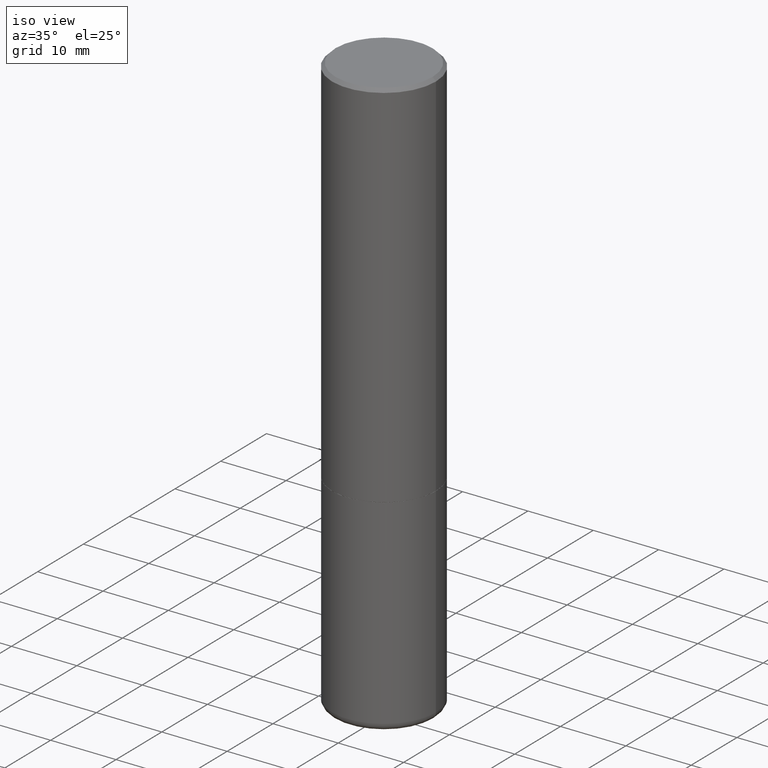
[diagram: clean part render]
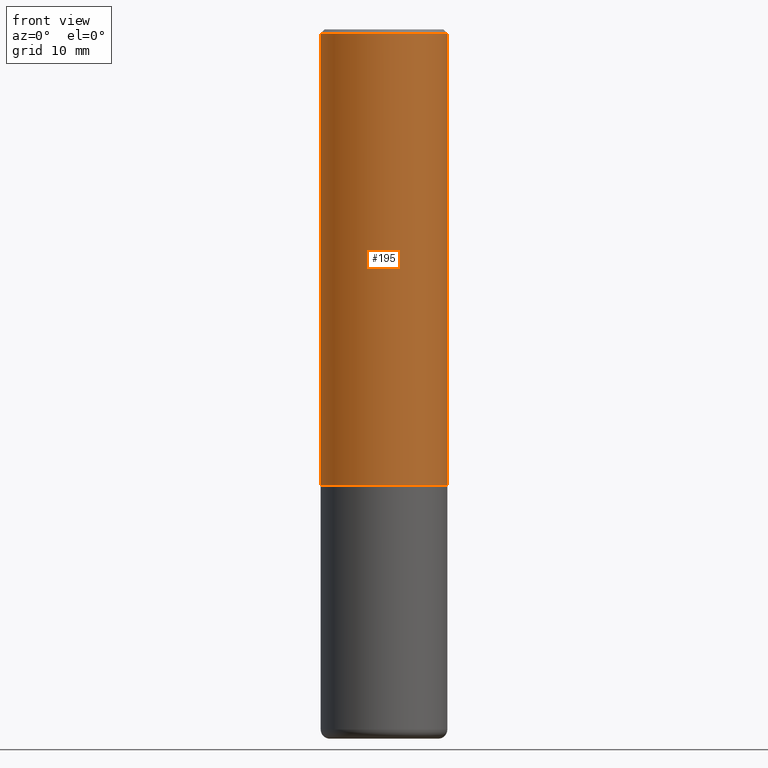
[diagram: tour spotlight — one face highlighted and labeled with its STEP entity id]
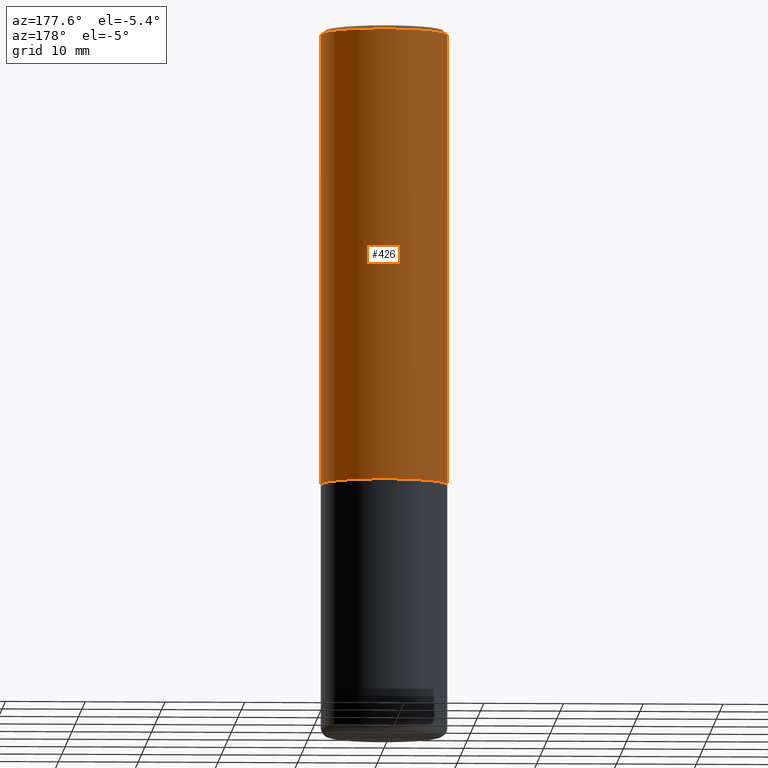
[diagram: tour spotlight — one face highlighted and labeled with its STEP entity id]
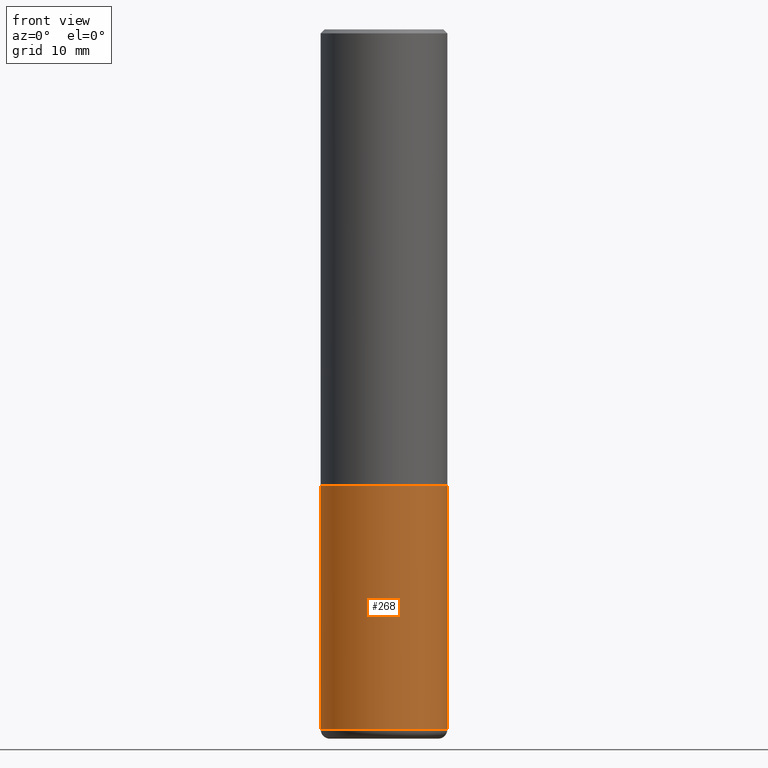
[diagram: tour spotlight — one face highlighted and labeled with its STEP entity id]
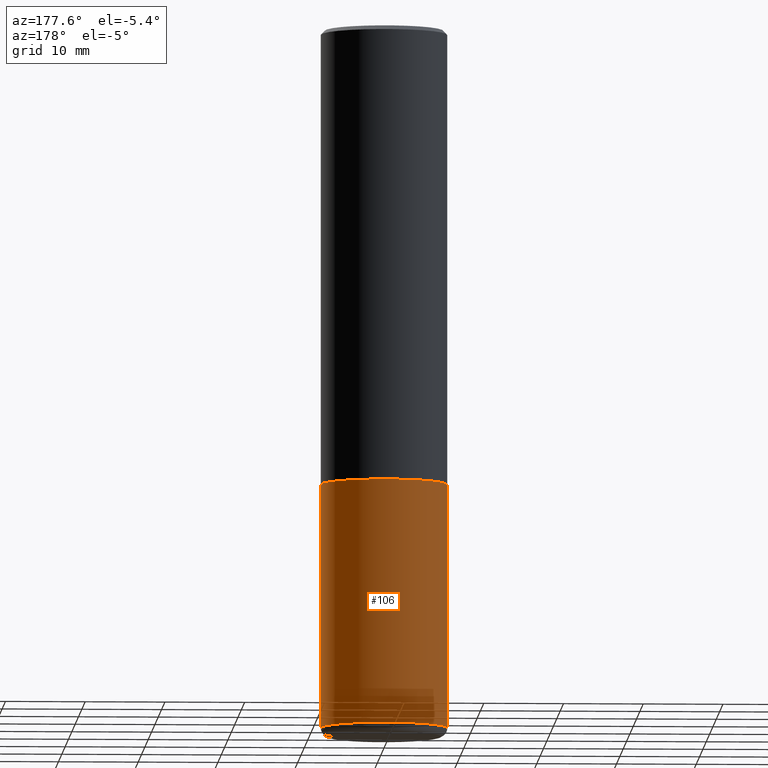
[diagram: tour spotlight — one face highlighted and labeled with its STEP entity id]
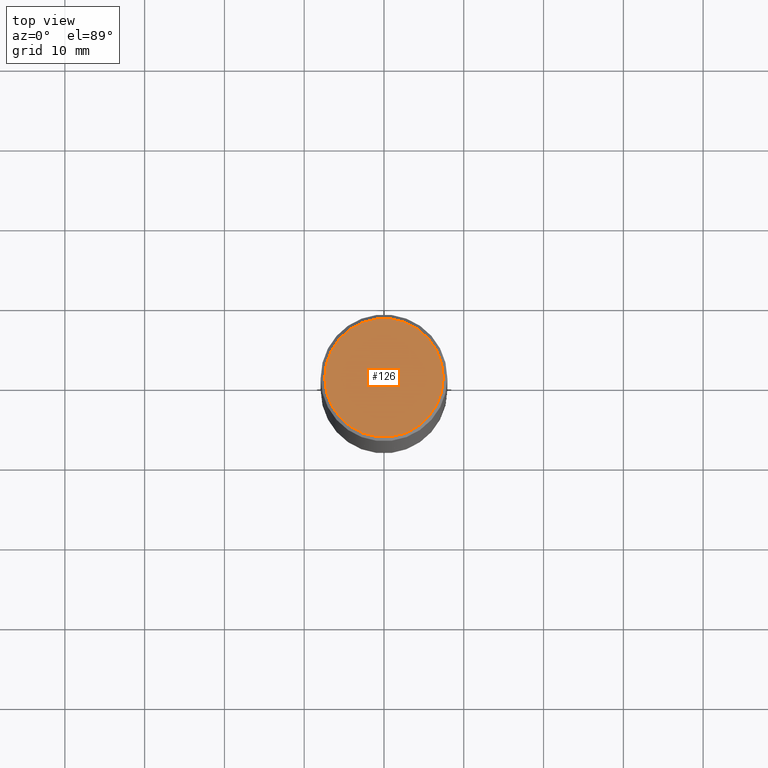
[diagram: tour spotlight — one face highlighted and labeled with its STEP entity id]
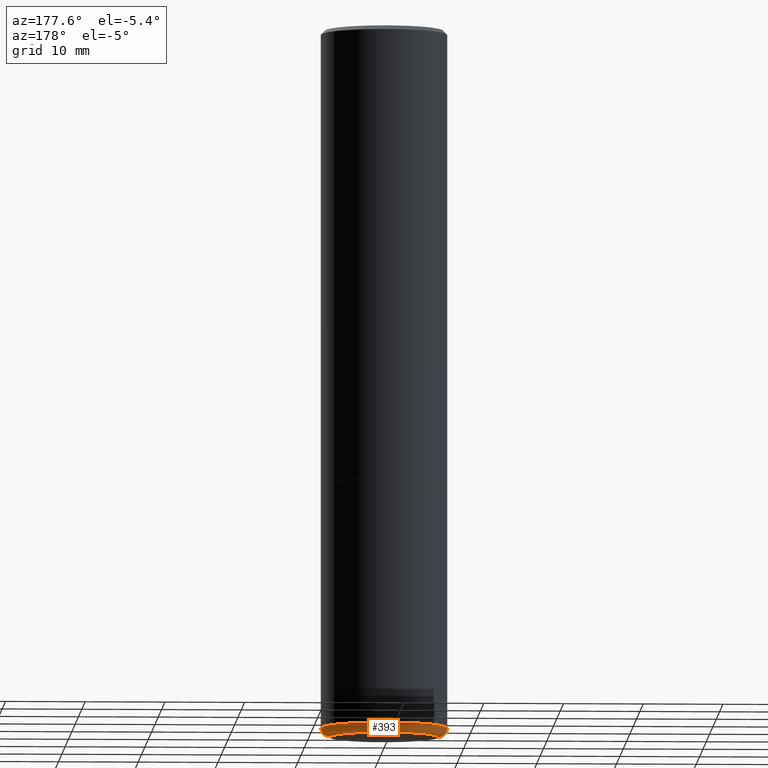
[diagram: tour spotlight — one face highlighted and labeled with its STEP entity id]
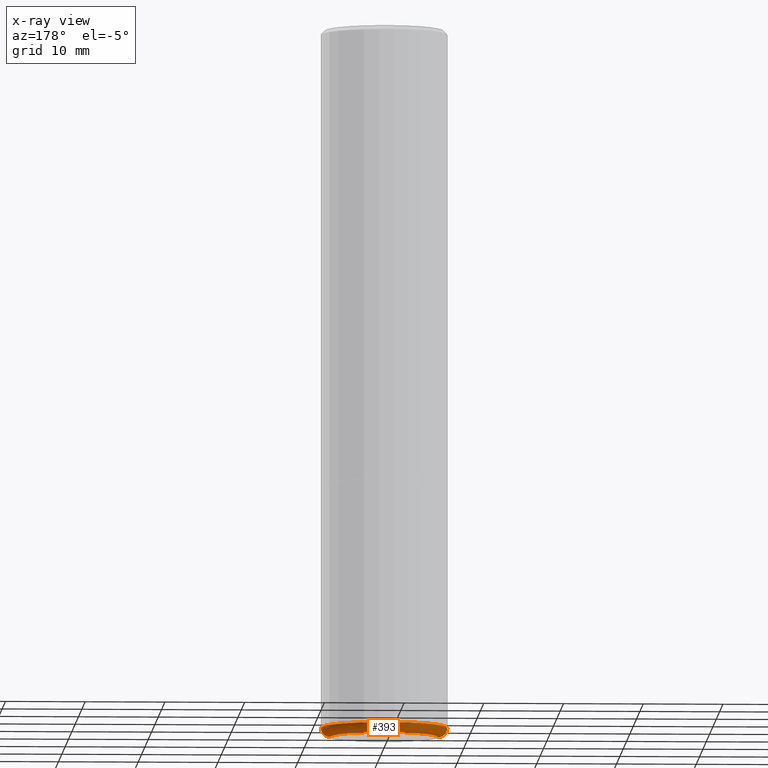
[diagram: x-ray of the same camera — body ghosted, this tour face saturated]
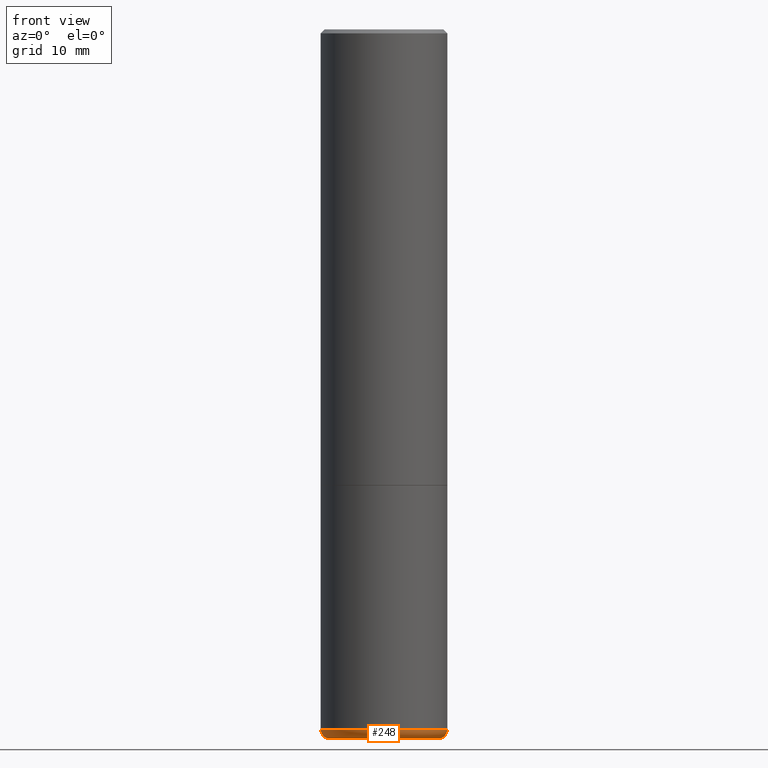
[diagram: tour spotlight — one face highlighted and labeled with its STEP entity id]
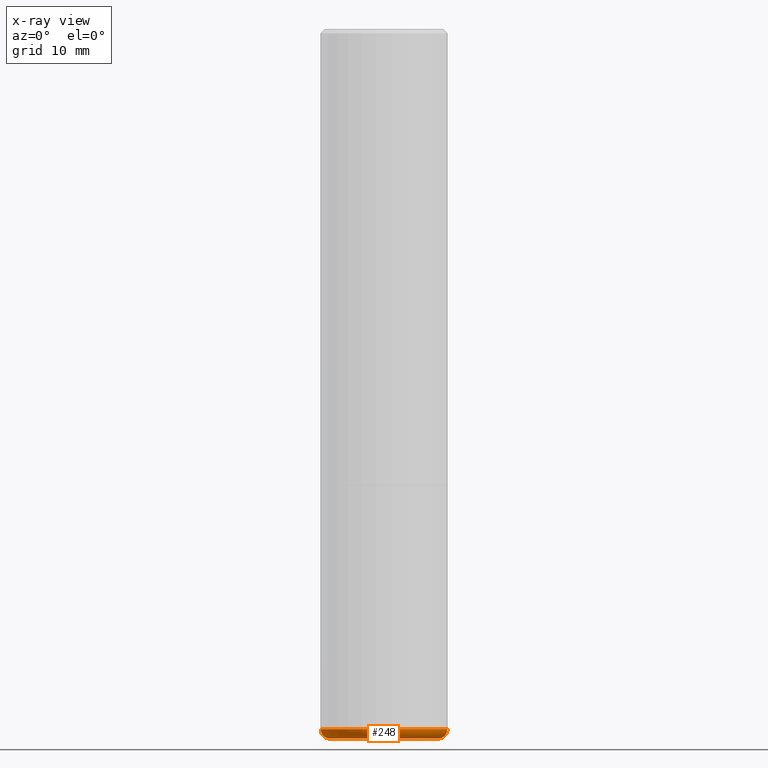
[diagram: x-ray of the same camera — body ghosted, this tour face saturated]
A machine part: a face-by-face anatomy tour. The part has 15 B-rep faces; the first image is the clean iso view, then the 7 largest visible faces are spotlighted one at a time (largest first), each with its STEP entity span.

Face 1 — front view, entity #195. In plain terms, the highlighted cylindrical surface (partial cylindrical patch) has radius 7.9375 mm, axis along (-0, 0, 1).
Definition (entity closure, byte-faithful):
#5 = DIRECTION ( 'NONE',  ( -2.445468806185136877E-29, 3.491481338843145188E-15, 1.000000000000000000 ) ) ;
#11 = DIRECTION ( 'NONE',  ( -2.445468806185136597E-29, 3.491481338843145583E-15, 1.000000000000000000 ) ) ;
#27 = CYLINDRICAL_SURFACE ( 'NONE', #352, 0.3124999999999998890 ) ;
#31 = FACE_OUTER_BOUND ( 'NONE', #413, .T. ) ;
#34 = DIRECTION ( 'NONE',  ( -2.445468806185136597E-29, 3.491481338843145583E-15, 1.000000000000000000 ) ) ;
#38 = CARTESIAN_POINT ( 'NONE',  ( 5.499859345110370619E-29, -7.852341531058232286E-15, -2.248999999999999222 ) ) ;
#43 = ORIENTED_EDGE ( 'NONE', *, *, #240, .T. ) ;
#57 = CARTESIAN_POINT ( 'NONE',  ( -0.3125000000000000000, -1.740639529667232739E-15, -2.248999999999999222 ) ) ;
#60 = VECTOR ( 'NONE', #5, 39.37007874015748143 ) ;
#75 = VERTEX_POINT ( 'NONE', #206 ) ;
#92 = VECTOR ( 'NONE', #172, 39.37007874015748143 ) ;
#129 = AXIS2_PLACEMENT_3D ( 'NONE', #341, #272, #377 ) ;
#148 = VERTEX_POINT ( 'NONE', #171 ) ;
#149 = EDGE_CURVE ( 'NONE', #419, #148, #209, .T. ) ;
#152 = DIRECTION ( 'NONE',  ( 1.000000000000000000, -6.982962677686269077E-15, 0.000000000000000000 ) ) ;
#170 = CARTESIAN_POINT ( 'NONE',  ( -0.3124999999999998890, 2.220446049250312292E-15, -1.537167215704657391E-29 ) ) ;
#171 = CARTESIAN_POINT ( 'NONE',  ( -0.3124999999999998335, 2.112346210000093866E-15, -0.02000000000000002123 ) ) ;
#172 = DIRECTION ( 'NONE',  ( -2.445468806185136877E-29, 3.491481338843145188E-15, 1.000000000000000000 ) ) ;
#177 = EDGE_CURVE ( 'NONE', #148, #75, #342, .T. ) ;
#195 = ADVANCED_FACE ( 'NONE', ( #31 ), #27, .T. ) ;
#201 = ORIENTED_EDGE ( 'NONE', *, *, #177, .F. ) ;
#206 = CARTESIAN_POINT ( 'NONE',  ( 0.3124999999999998335, -2.213735251080465334E-15, -0.02000000000000002123 ) ) ;
#207 = LINE ( 'NONE', #373, #60 ) ;
#209 = LINE ( 'NONE', #170, #92 ) ;
#239 = DIRECTION ( 'NONE',  ( 1.000000000000000000, -6.982962677686266711E-15, 4.876176775795935232E-29 ) ) ;
#240 = EDGE_CURVE ( 'NONE', #281, #75, #207, .T. ) ;
#272 = DIRECTION ( 'NONE',  ( -2.445468806185136597E-29, 3.491481338843145583E-15, 1.000000000000000000 ) ) ;
#274 = AXIS2_PLACEMENT_3D ( 'NONE', #38, #11, #152 ) ;
#281 = VERTEX_POINT ( 'NONE', #314 ) ;
#306 = CARTESIAN_POINT ( 'NONE',  ( 0.000000000000000000, 0.000000000000000000, 0.000000000000000000 ) ) ;
#307 = EDGE_CURVE ( 'NONE', #419, #281, #343, .T. ) ;
#314 = CARTESIAN_POINT ( 'NONE',  ( 0.3125000000000000000, -1.003451736783519063E-14, -2.248999999999999222 ) ) ;
#320 = ORIENTED_EDGE ( 'NONE', *, *, #149, .F. ) ;
#341 = CARTESIAN_POINT ( 'NONE',  ( 4.890937612370278413E-31, -6.982962677686297772E-17, -0.02000000000000002123 ) ) ;
#342 = CIRCLE ( 'NONE', #129, 0.3124999999999998335 ) ;
#343 = CIRCLE ( 'NONE', #274, 0.3125000000000000000 ) ;
#352 = AXIS2_PLACEMENT_3D ( 'NONE', #306, #34, #239 ) ;
#373 = CARTESIAN_POINT ( 'NONE',  ( 0.3124999999999998890, -2.182175836776957558E-15, 1.523805242436229235E-29 ) ) ;
#377 = DIRECTION ( 'NONE',  ( 1.000000000000000000, -6.982962677686265133E-15, 0.000000000000000000 ) ) ;
#385 = ORIENTED_EDGE ( 'NONE', *, *, #307, .T. ) ;
#413 = EDGE_LOOP ( 'NONE', ( #320, #385, #43, #201 ) ) ;
#419 = VERTEX_POINT ( 'NONE', #57 ) ;

Face 2 — auxiliary view, entity #426. In plain terms, the highlighted cylindrical surface (partial cylindrical patch) has radius 7.9375 mm, axis along (-0, 0, 1).
Definition (entity closure, byte-faithful):
#5 = DIRECTION ( 'NONE',  ( -2.445468806185136877E-29, 3.491481338843145188E-15, 1.000000000000000000 ) ) ;
#54 = CIRCLE ( 'NONE', #237, 0.3125000000000000000 ) ;
#57 = CARTESIAN_POINT ( 'NONE',  ( -0.3125000000000000000, -1.740639529667232739E-15, -2.248999999999999222 ) ) ;
#60 = VECTOR ( 'NONE', #5, 39.37007874015748143 ) ;
#75 = VERTEX_POINT ( 'NONE', #206 ) ;
#84 = ORIENTED_EDGE ( 'NONE', *, *, #400, .F. ) ;
#92 = VECTOR ( 'NONE', #172, 39.37007874015748143 ) ;
#107 = DIRECTION ( 'NONE',  ( -2.445468806185136597E-29, 3.491481338843145583E-15, 1.000000000000000000 ) ) ;
#110 = ORIENTED_EDGE ( 'NONE', *, *, #321, .T. ) ;
#123 = ORIENTED_EDGE ( 'NONE', *, *, #240, .F. ) ;
#148 = VERTEX_POINT ( 'NONE', #171 ) ;
#149 = EDGE_CURVE ( 'NONE', #419, #148, #209, .T. ) ;
#155 = DIRECTION ( 'NONE',  ( -2.445468806185136597E-29, 3.491481338843145583E-15, 1.000000000000000000 ) ) ;
#156 = ORIENTED_EDGE ( 'NONE', *, *, #149, .T. ) ;
#170 = CARTESIAN_POINT ( 'NONE',  ( -0.3124999999999998890, 2.220446049250312292E-15, -1.537167215704657391E-29 ) ) ;
#171 = CARTESIAN_POINT ( 'NONE',  ( -0.3124999999999998335, 2.112346210000093866E-15, -0.02000000000000002123 ) ) ;
#172 = DIRECTION ( 'NONE',  ( -2.445468806185136877E-29, 3.491481338843145188E-15, 1.000000000000000000 ) ) ;
#187 = DIRECTION ( 'NONE',  ( 1.000000000000000000, -6.982962677686269077E-15, 0.000000000000000000 ) ) ;
#206 = CARTESIAN_POINT ( 'NONE',  ( 0.3124999999999998335, -2.213735251080465334E-15, -0.02000000000000002123 ) ) ;
#207 = LINE ( 'NONE', #373, #60 ) ;
#209 = LINE ( 'NONE', #170, #92 ) ;
#237 = AXIS2_PLACEMENT_3D ( 'NONE', #347, #155, #187 ) ;
#240 = EDGE_CURVE ( 'NONE', #281, #75, #207, .T. ) ;
#260 = DIRECTION ( 'NONE',  ( -2.445468806185136597E-29, 3.491481338843145583E-15, 1.000000000000000000 ) ) ;
#281 = VERTEX_POINT ( 'NONE', #314 ) ;
#295 = CARTESIAN_POINT ( 'NONE',  ( 0.000000000000000000, 0.000000000000000000, 0.000000000000000000 ) ) ;
#314 = CARTESIAN_POINT ( 'NONE',  ( 0.3125000000000000000, -1.003451736783519063E-14, -2.248999999999999222 ) ) ;
#321 = EDGE_CURVE ( 'NONE', #281, #419, #54, .T. ) ;
#322 = CARTESIAN_POINT ( 'NONE',  ( 4.890937612370278413E-31, -6.982962677686297772E-17, -0.02000000000000002123 ) ) ;
#329 = CIRCLE ( 'NONE', #362, 0.3124999999999998335 ) ;
#333 = CYLINDRICAL_SURFACE ( 'NONE', #371, 0.3124999999999998890 ) ;
#347 = CARTESIAN_POINT ( 'NONE',  ( 5.499859345110370619E-29, -7.852341531058232286E-15, -2.248999999999999222 ) ) ;
#362 = AXIS2_PLACEMENT_3D ( 'NONE', #322, #107, #378 ) ;
#365 = EDGE_LOOP ( 'NONE', ( #110, #156, #84, #123 ) ) ;
#371 = AXIS2_PLACEMENT_3D ( 'NONE', #295, #260, #396 ) ;
#373 = CARTESIAN_POINT ( 'NONE',  ( 0.3124999999999998890, -2.182175836776957558E-15, 1.523805242436229235E-29 ) ) ;
#378 = DIRECTION ( 'NONE',  ( 1.000000000000000000, -6.982962677686265133E-15, 0.000000000000000000 ) ) ;
#396 = DIRECTION ( 'NONE',  ( 1.000000000000000000, -6.982962677686266711E-15, 4.876176775795935232E-29 ) ) ;
#400 = EDGE_CURVE ( 'NONE', #75, #148, #329, .T. ) ;
#419 = VERTEX_POINT ( 'NONE', #57 ) ;
#426 = ADVANCED_FACE ( 'NONE', ( #427 ), #333, .T. ) ;
#427 = FACE_OUTER_BOUND ( 'NONE', #365, .T. ) ;

Face 3 — front view, entity #268. In plain terms, the highlighted cylindrical surface (partial cylindrical patch) has radius 7.9375 mm, axis along (-0, 0, 1).
Definition (entity closure, byte-faithful):
#19 = LINE ( 'NONE', #301, #210 ) ;
#22 = EDGE_CURVE ( 'NONE', #50, #425, #19, .T. ) ;
#35 = EDGE_CURVE ( 'NONE', #50, #56, #375, .T. ) ;
#39 = AXIS2_PLACEMENT_3D ( 'NONE', #119, #259, #391 ) ;
#44 = CARTESIAN_POINT ( 'NONE',  ( 0.3125000000000000000, -1.003800884917403364E-14, -2.249999999999999556 ) ) ;
#46 = EDGE_CURVE ( 'NONE', #425, #379, #423, .T. ) ;
#50 = VERTEX_POINT ( 'NONE', #439 ) ;
#52 = DIRECTION ( 'NONE',  ( -2.445468806185136597E-29, 3.491481338843145583E-15, 1.000000000000000000 ) ) ;
#56 = VERTEX_POINT ( 'NONE', #277 ) ;
#59 = ORIENTED_EDGE ( 'NONE', *, *, #22, .F. ) ;
#73 = LINE ( 'NONE', #372, #410 ) ;
#78 = AXIS2_PLACEMENT_3D ( 'NONE', #288, #108, #412 ) ;
#89 = CARTESIAN_POINT ( 'NONE',  ( 5.502304813916556222E-29, -7.855833012397075293E-15, -2.249999999999999556 ) ) ;
#108 = DIRECTION ( 'NONE',  ( -2.445468806185136597E-29, 3.491481338843145583E-15, 1.000000000000000000 ) ) ;
#119 = CARTESIAN_POINT ( 'NONE',  ( 8.449245539719989979E-29, -1.206328334862541465E-14, -3.455061670936044216 ) ) ;
#128 = ORIENTED_EDGE ( 'NONE', *, *, #235, .T. ) ;
#131 = CARTESIAN_POINT ( 'NONE',  ( -0.3125000000000000000, -7.739112131260931893E-15, -2.249999999999999556 ) ) ;
#132 = ORIENTED_EDGE ( 'NONE', *, *, #46, .F. ) ;
#146 = ORIENTED_EDGE ( 'NONE', *, *, #35, .T. ) ;
#147 = FACE_OUTER_BOUND ( 'NONE', #428, .T. ) ;
#210 = VECTOR ( 'NONE', #430, 39.37007874015748143 ) ;
#235 = EDGE_CURVE ( 'NONE', #56, #379, #73, .T. ) ;
#236 = DIRECTION ( 'NONE',  ( 1.000000000000000000, -6.982962677686265133E-15, 0.000000000000000000 ) ) ;
#259 = DIRECTION ( 'NONE',  ( -2.445468806185136597E-29, 3.491481338843145583E-15, 1.000000000000000000 ) ) ;
#268 = ADVANCED_FACE ( 'NONE', ( #147 ), #420, .T. ) ;
#277 = CARTESIAN_POINT ( 'NONE',  ( 0.3125000000000000000, -1.424545918540237458E-14, -3.455061670936044216 ) ) ;
#288 = CARTESIAN_POINT ( 'NONE',  ( 0.000000000000000000, 0.000000000000000000, 0.000000000000000000 ) ) ;
#296 = AXIS2_PLACEMENT_3D ( 'NONE', #89, #52, #236 ) ;
#301 = CARTESIAN_POINT ( 'NONE',  ( -0.3125000000000000000, 2.220446049250313081E-15, -1.537167215704658232E-29 ) ) ;
#308 = DIRECTION ( 'NONE',  ( -2.445468806185136877E-29, 3.491481338843145188E-15, 1.000000000000000000 ) ) ;
#372 = CARTESIAN_POINT ( 'NONE',  ( 0.3125000000000000000, -2.182175836776958347E-15, 1.523805242436230075E-29 ) ) ;
#375 = CIRCLE ( 'NONE', #39, 0.3125000000000000000 ) ;
#379 = VERTEX_POINT ( 'NONE', #44 ) ;
#391 = DIRECTION ( 'NONE',  ( 1.000000000000000000, -6.982962677686269077E-15, 0.000000000000000000 ) ) ;
#410 = VECTOR ( 'NONE', #308, 39.37007874015748143 ) ;
#412 = DIRECTION ( 'NONE',  ( 1.000000000000000000, -6.982962677686266711E-15, 4.876176775795936353E-29 ) ) ;
#420 = CYLINDRICAL_SURFACE ( 'NONE', #78, 0.3125000000000000000 ) ;
#423 = CIRCLE ( 'NONE', #296, 0.3125000000000000000 ) ;
#425 = VERTEX_POINT ( 'NONE', #131 ) ;
#428 = EDGE_LOOP ( 'NONE', ( #59, #146, #128, #132 ) ) ;
#430 = DIRECTION ( 'NONE',  ( -2.445468806185136877E-29, 3.491481338843145188E-15, 1.000000000000000000 ) ) ;
#439 = CARTESIAN_POINT ( 'NONE',  ( -0.3125000000000000000, -7.739112131260931893E-15, -3.455061670936044216 ) ) ;

Face 4 — auxiliary view, entity #106. In plain terms, the highlighted cylindrical surface (partial cylindrical patch) has radius 7.9375 mm, axis along (-0, 0, 1).
Definition (entity closure, byte-faithful):
#14 = DIRECTION ( 'NONE',  ( -2.445468806185136597E-29, 3.491481338843145583E-15, 1.000000000000000000 ) ) ;
#19 = LINE ( 'NONE', #301, #210 ) ;
#22 = EDGE_CURVE ( 'NONE', #50, #425, #19, .T. ) ;
#28 = CYLINDRICAL_SURFACE ( 'NONE', #137, 0.3125000000000000000 ) ;
#29 = EDGE_CURVE ( 'NONE', #56, #50, #180, .T. ) ;
#40 = ORIENTED_EDGE ( 'NONE', *, *, #435, .F. ) ;
#44 = CARTESIAN_POINT ( 'NONE',  ( 0.3125000000000000000, -1.003800884917403364E-14, -2.249999999999999556 ) ) ;
#50 = VERTEX_POINT ( 'NONE', #439 ) ;
#56 = VERTEX_POINT ( 'NONE', #277 ) ;
#73 = LINE ( 'NONE', #372, #410 ) ;
#96 = DIRECTION ( 'NONE',  ( -2.445468806185136597E-29, 3.491481338843145583E-15, 1.000000000000000000 ) ) ;
#102 = CARTESIAN_POINT ( 'NONE',  ( 0.000000000000000000, 0.000000000000000000, 0.000000000000000000 ) ) ;
#106 = ADVANCED_FACE ( 'NONE', ( #345 ), #28, .T. ) ;
#113 = EDGE_LOOP ( 'NONE', ( #397, #228, #40, #326 ) ) ;
#131 = CARTESIAN_POINT ( 'NONE',  ( -0.3125000000000000000, -7.739112131260931893E-15, -2.249999999999999556 ) ) ;
#137 = AXIS2_PLACEMENT_3D ( 'NONE', #102, #140, #244 ) ;
#140 = DIRECTION ( 'NONE',  ( -2.445468806185136597E-29, 3.491481338843145583E-15, 1.000000000000000000 ) ) ;
#159 = CARTESIAN_POINT ( 'NONE',  ( 8.449245539719989979E-29, -1.206328334862541465E-14, -3.455061670936044216 ) ) ;
#175 = AXIS2_PLACEMENT_3D ( 'NONE', #394, #14, #358 ) ;
#180 = CIRCLE ( 'NONE', #417, 0.3125000000000000000 ) ;
#210 = VECTOR ( 'NONE', #430, 39.37007874015748143 ) ;
#228 = ORIENTED_EDGE ( 'NONE', *, *, #22, .T. ) ;
#235 = EDGE_CURVE ( 'NONE', #56, #379, #73, .T. ) ;
#244 = DIRECTION ( 'NONE',  ( 1.000000000000000000, -6.982962677686266711E-15, 4.876176775795936353E-29 ) ) ;
#277 = CARTESIAN_POINT ( 'NONE',  ( 0.3125000000000000000, -1.424545918540237458E-14, -3.455061670936044216 ) ) ;
#294 = DIRECTION ( 'NONE',  ( 1.000000000000000000, -6.982962677686269077E-15, 0.000000000000000000 ) ) ;
#297 = CIRCLE ( 'NONE', #175, 0.3125000000000000000 ) ;
#301 = CARTESIAN_POINT ( 'NONE',  ( -0.3125000000000000000, 2.220446049250313081E-15, -1.537167215704658232E-29 ) ) ;
#308 = DIRECTION ( 'NONE',  ( -2.445468806185136877E-29, 3.491481338843145188E-15, 1.000000000000000000 ) ) ;
#326 = ORIENTED_EDGE ( 'NONE', *, *, #235, .F. ) ;
#345 = FACE_OUTER_BOUND ( 'NONE', #113, .T. ) ;
#358 = DIRECTION ( 'NONE',  ( 1.000000000000000000, -6.982962677686265133E-15, 0.000000000000000000 ) ) ;
#372 = CARTESIAN_POINT ( 'NONE',  ( 0.3125000000000000000, -2.182175836776958347E-15, 1.523805242436230075E-29 ) ) ;
#379 = VERTEX_POINT ( 'NONE', #44 ) ;
#394 = CARTESIAN_POINT ( 'NONE',  ( 5.502304813916556222E-29, -7.855833012397075293E-15, -2.249999999999999556 ) ) ;
#397 = ORIENTED_EDGE ( 'NONE', *, *, #29, .T. ) ;
#410 = VECTOR ( 'NONE', #308, 39.37007874015748143 ) ;
#417 = AXIS2_PLACEMENT_3D ( 'NONE', #159, #96, #294 ) ;
#425 = VERTEX_POINT ( 'NONE', #131 ) ;
#430 = DIRECTION ( 'NONE',  ( -2.445468806185136877E-29, 3.491481338843145188E-15, 1.000000000000000000 ) ) ;
#435 = EDGE_CURVE ( 'NONE', #379, #425, #297, .T. ) ;
#439 = CARTESIAN_POINT ( 'NONE',  ( -0.3125000000000000000, -7.739112131260931893E-15, -3.455061670936044216 ) ) ;

Face 5 — top view, entity #126. In plain terms, the highlighted planar face has unit normal (0, -0, -1).
Definition (entity closure, byte-faithful):
#1 = CARTESIAN_POINT ( 'NONE',  ( 2.042516583223231356E-15, 0.2924999999999998157, -1.019124035366569212E-15 ) ) ;
#8 = CARTESIAN_POINT ( 'NONE',  ( -0.2924999999999998157, 2.077431396611662611E-15, 4.268512490086005323E-18 ) ) ;
#67 = CARTESIAN_POINT ( 'NONE',  ( -1.043851414335219820E-46, 1.490343170380447200E-32, 4.268512490100411279E-18 ) ) ;
#79 = EDGE_CURVE ( 'NONE', #298, #225, #223, .T. ) ;
#85 = AXIS2_PLACEMENT_3D ( 'NONE', #213, #401, #278 ) ;
#99 = FACE_OUTER_BOUND ( 'NONE', #263, .T. ) ;
#103 = CIRCLE ( 'NONE', #85, 0.2924999999999998157 ) ;
#126 = ADVANCED_FACE ( 'NONE', ( #99 ), #374, .F. ) ;
#136 = DIRECTION ( 'NONE',  ( -2.445468806185136597E-29, 3.491481338843145583E-15, 1.000000000000000000 ) ) ;
#176 = CARTESIAN_POINT ( 'NONE',  ( 0.2924999999999998157, -2.110215457714318748E-15, 4.268512490114932791E-18 ) ) ;
#191 = EDGE_CURVE ( 'NONE', #225, #298, #103, .T. ) ;
#213 = CARTESIAN_POINT ( 'NONE',  ( -1.043851414335219820E-46, 1.490343170380447200E-32, 4.268512490100411279E-18 ) ) ;
#223 = CIRCLE ( 'NONE', #323, 0.2924999999999998157 ) ;
#225 = VERTEX_POINT ( 'NONE', #176 ) ;
#263 = EDGE_LOOP ( 'NONE', ( #270, #285 ) ) ;
#270 = ORIENTED_EDGE ( 'NONE', *, *, #79, .T. ) ;
#278 = DIRECTION ( 'NONE',  ( 1.000000000000000000, -6.982962677686266711E-15, 4.876067333457692840E-29 ) ) ;
#285 = ORIENTED_EDGE ( 'NONE', *, *, #191, .T. ) ;
#287 = AXIS2_PLACEMENT_3D ( 'NONE', #1, #405, #335 ) ;
#298 = VERTEX_POINT ( 'NONE', #8 ) ;
#323 = AXIS2_PLACEMENT_3D ( 'NONE', #67, #136, #403 ) ;
#335 = DIRECTION ( 'NONE',  ( -1.000000000000000000, 6.982962677686265922E-15, -4.876176775795935793E-29 ) ) ;
#374 = PLANE ( 'NONE',  #287 ) ;
#401 = DIRECTION ( 'NONE',  ( -2.445468806185136597E-29, 3.491481338843145583E-15, 1.000000000000000000 ) ) ;
#403 = DIRECTION ( 'NONE',  ( 1.000000000000000000, -6.982962677686266711E-15, 4.876067333457692840E-29 ) ) ;
#405 = DIRECTION ( 'NONE',  ( 2.438088387897960049E-29, -3.491481338843145188E-15, -1.000000000000000000 ) ) ;

Face 6 — auxiliary view, entity #393. An x-ray twin of the same camera follows (body ghosted, this face saturated) — the face is partly hidden behind the body. In plain terms, the highlighted toroidal blend (fillet) surface has major radius 6.7945 mm and minor (blend) radius 1.143 mm.
Definition (entity closure, byte-faithful):
#2 = EDGE_CURVE ( 'NONE', #261, #56, #245, .T. ) ;
#25 = CARTESIAN_POINT ( 'NONE',  ( -0.2675000000000000155, -1.016258153046714615E-14, -3.455061670936044216 ) ) ;
#29 = EDGE_CURVE ( 'NONE', #56, #50, #180, .T. ) ;
#50 = VERTEX_POINT ( 'NONE', #439 ) ;
#53 = AXIS2_PLACEMENT_3D ( 'NONE', #25, #312, #442 ) ;
#56 = VERTEX_POINT ( 'NONE', #277 ) ;
#87 = DIRECTION ( 'NONE',  ( -6.982962677686266711E-15, -1.000000000000000000, 3.491481338843145583E-15 ) ) ;
#93 = AXIS2_PLACEMENT_3D ( 'NONE', #215, #386, #115 ) ;
#95 = ORIENTED_EDGE ( 'NONE', *, *, #346, .T. ) ;
#96 = DIRECTION ( 'NONE',  ( -2.445468806185136597E-29, 3.491481338843145583E-15, 1.000000000000000000 ) ) ;
#111 = EDGE_CURVE ( 'NONE', #193, #50, #252, .T. ) ;
#115 = DIRECTION ( 'NONE',  ( 1.000000000000000000, -6.982962677686266711E-15, 0.000000000000000000 ) ) ;
#158 = DIRECTION ( 'NONE',  ( 1.000000000000000000, -6.982962677686269077E-15, 0.000000000000000000 ) ) ;
#159 = CARTESIAN_POINT ( 'NONE',  ( 8.449245539719989979E-29, -1.206328334862541465E-14, -3.455061670936044216 ) ) ;
#162 = CARTESIAN_POINT ( 'NONE',  ( 0.2675000000000000155, -1.393122586490649131E-14, -3.455061670936044216 ) ) ;
#179 = DIRECTION ( 'NONE',  ( 1.000000000000000000, -6.982962677686269077E-15, 4.883557194083114022E-29 ) ) ;
#180 = CIRCLE ( 'NONE', #417, 0.3125000000000000000 ) ;
#182 = CIRCLE ( 'NONE', #93, 0.2651448819690678804 ) ;
#183 = ORIENTED_EDGE ( 'NONE', *, *, #29, .F. ) ;
#184 = FACE_OUTER_BOUND ( 'NONE', #251, .T. ) ;
#186 = ORIENTED_EDGE ( 'NONE', *, *, #2, .F. ) ;
#193 = VERTEX_POINT ( 'NONE', #338 ) ;
#199 = AXIS2_PLACEMENT_3D ( 'NONE', #319, #384, #179 ) ;
#215 = CARTESIAN_POINT ( 'NONE',  ( 8.559140821647976968E-29, -1.222018468595100934E-14, -3.500000000000000000 ) ) ;
#245 = CIRCLE ( 'NONE', #315, 0.04499999999999999833 ) ;
#251 = EDGE_LOOP ( 'NONE', ( #95, #332, #183, #186 ) ) ;
#252 = CIRCLE ( 'NONE', #53, 0.04499999999999999833 ) ;
#261 = VERTEX_POINT ( 'NONE', #416 ) ;
#266 = TOROIDAL_SURFACE ( 'NONE', #199, 0.2675000000000000155, 0.04499999999999999140 ) ;
#277 = CARTESIAN_POINT ( 'NONE',  ( 0.3125000000000000000, -1.424545918540237458E-14, -3.455061670936044216 ) ) ;
#294 = DIRECTION ( 'NONE',  ( 1.000000000000000000, -6.982962677686269077E-15, 0.000000000000000000 ) ) ;
#312 = DIRECTION ( 'NONE',  ( 7.105427357601001859E-15, 1.000000000000000000, -3.491481338843145583E-15 ) ) ;
#315 = AXIS2_PLACEMENT_3D ( 'NONE', #162, #87, #158 ) ;
#319 = CARTESIAN_POINT ( 'NONE',  ( 8.449245539719989979E-29, -1.206328334862541465E-14, -3.455061670936044216 ) ) ;
#332 = ORIENTED_EDGE ( 'NONE', *, *, #111, .T. ) ;
#338 = CARTESIAN_POINT ( 'NONE',  ( -0.2651448819690678804, -1.008952714362760311E-14, -3.500000000000000000 ) ) ;
#346 = EDGE_CURVE ( 'NONE', #261, #193, #182, .T. ) ;
#384 = DIRECTION ( 'NONE',  ( -2.445468806185136597E-29, 3.491481338843145583E-15, 1.000000000000000000 ) ) ;
#386 = DIRECTION ( 'NONE',  ( -2.445468806185136597E-29, 3.491481338843145583E-15, 1.000000000000000000 ) ) ;
#393 = ADVANCED_FACE ( 'NONE', ( #184 ), #266, .T. ) ;
#416 = CARTESIAN_POINT ( 'NONE',  ( 0.2651448819690678804, -1.407168150092053958E-14, -3.500000000000000000 ) ) ;
#417 = AXIS2_PLACEMENT_3D ( 'NONE', #159, #96, #294 ) ;
#439 = CARTESIAN_POINT ( 'NONE',  ( -0.3125000000000000000, -7.739112131260931893E-15, -3.455061670936044216 ) ) ;
#442 = DIRECTION ( 'NONE',  ( -1.000000000000000000, 7.105427357600990815E-15, 0.000000000000000000 ) ) ;

Face 7 — front view, entity #248. An x-ray twin of the same camera follows (body ghosted, this face saturated) — the face is partly hidden behind the body. In plain terms, the highlighted toroidal blend (fillet) surface has major radius 6.7945 mm and minor (blend) radius 1.143 mm.
Definition (entity closure, byte-faithful):
#2 = EDGE_CURVE ( 'NONE', #261, #56, #245, .T. ) ;
#16 = CIRCLE ( 'NONE', #168, 0.2651448819690678804 ) ;
#25 = CARTESIAN_POINT ( 'NONE',  ( -0.2675000000000000155, -1.016258153046714615E-14, -3.455061670936044216 ) ) ;
#35 = EDGE_CURVE ( 'NONE', #50, #56, #375, .T. ) ;
#39 = AXIS2_PLACEMENT_3D ( 'NONE', #119, #259, #391 ) ;
#50 = VERTEX_POINT ( 'NONE', #439 ) ;
#53 = AXIS2_PLACEMENT_3D ( 'NONE', #25, #312, #442 ) ;
#56 = VERTEX_POINT ( 'NONE', #277 ) ;
#77 = ORIENTED_EDGE ( 'NONE', *, *, #111, .F. ) ;
#80 = DIRECTION ( 'NONE',  ( -2.445468806185136597E-29, 3.491481338843145583E-15, 1.000000000000000000 ) ) ;
#87 = DIRECTION ( 'NONE',  ( -6.982962677686266711E-15, -1.000000000000000000, 3.491481338843145583E-15 ) ) ;
#105 = AXIS2_PLACEMENT_3D ( 'NONE', #282, #80, #221 ) ;
#111 = EDGE_CURVE ( 'NONE', #193, #50, #252, .T. ) ;
#112 = DIRECTION ( 'NONE',  ( -2.445468806185136597E-29, 3.491481338843145583E-15, 1.000000000000000000 ) ) ;
#116 = ORIENTED_EDGE ( 'NONE', *, *, #380, .T. ) ;
#117 = FACE_OUTER_BOUND ( 'NONE', #434, .T. ) ;
#119 = CARTESIAN_POINT ( 'NONE',  ( 8.449245539719989979E-29, -1.206328334862541465E-14, -3.455061670936044216 ) ) ;
#158 = DIRECTION ( 'NONE',  ( 1.000000000000000000, -6.982962677686269077E-15, 0.000000000000000000 ) ) ;
#162 = CARTESIAN_POINT ( 'NONE',  ( 0.2675000000000000155, -1.393122586490649131E-14, -3.455061670936044216 ) ) ;
#168 = AXIS2_PLACEMENT_3D ( 'NONE', #217, #112, #383 ) ;
#193 = VERTEX_POINT ( 'NONE', #338 ) ;
#202 = ORIENTED_EDGE ( 'NONE', *, *, #35, .F. ) ;
#217 = CARTESIAN_POINT ( 'NONE',  ( 8.559140821647976968E-29, -1.222018468595100934E-14, -3.500000000000000000 ) ) ;
#221 = DIRECTION ( 'NONE',  ( 1.000000000000000000, -6.982962677686269077E-15, 4.883557194083114022E-29 ) ) ;
#245 = CIRCLE ( 'NONE', #315, 0.04499999999999999833 ) ;
#246 = TOROIDAL_SURFACE ( 'NONE', #105, 0.2675000000000000155, 0.04499999999999999140 ) ;
#248 = ADVANCED_FACE ( 'NONE', ( #117 ), #246, .T. ) ;
#252 = CIRCLE ( 'NONE', #53, 0.04499999999999999833 ) ;
#259 = DIRECTION ( 'NONE',  ( -2.445468806185136597E-29, 3.491481338843145583E-15, 1.000000000000000000 ) ) ;
#261 = VERTEX_POINT ( 'NONE', #416 ) ;
#277 = CARTESIAN_POINT ( 'NONE',  ( 0.3125000000000000000, -1.424545918540237458E-14, -3.455061670936044216 ) ) ;
#282 = CARTESIAN_POINT ( 'NONE',  ( 8.449245539719989979E-29, -1.206328334862541465E-14, -3.455061670936044216 ) ) ;
#312 = DIRECTION ( 'NONE',  ( 7.105427357601001859E-15, 1.000000000000000000, -3.491481338843145583E-15 ) ) ;
#315 = AXIS2_PLACEMENT_3D ( 'NONE', #162, #87, #158 ) ;
#338 = CARTESIAN_POINT ( 'NONE',  ( -0.2651448819690678804, -1.008952714362760311E-14, -3.500000000000000000 ) ) ;
#363 = ORIENTED_EDGE ( 'NONE', *, *, #2, .T. ) ;
#375 = CIRCLE ( 'NONE', #39, 0.3125000000000000000 ) ;
#380 = EDGE_CURVE ( 'NONE', #193, #261, #16, .T. ) ;
#383 = DIRECTION ( 'NONE',  ( 1.000000000000000000, -6.982962677686266711E-15, 0.000000000000000000 ) ) ;
#391 = DIRECTION ( 'NONE',  ( 1.000000000000000000, -6.982962677686269077E-15, 0.000000000000000000 ) ) ;
#416 = CARTESIAN_POINT ( 'NONE',  ( 0.2651448819690678804, -1.407168150092053958E-14, -3.500000000000000000 ) ) ;
#434 = EDGE_LOOP ( 'NONE', ( #77, #116, #363, #202 ) ) ;
#439 = CARTESIAN_POINT ( 'NONE',  ( -0.3125000000000000000, -7.739112131260931893E-15, -3.455061670936044216 ) ) ;
#442 = DIRECTION ( 'NONE',  ( -1.000000000000000000, 7.105427357600990815E-15, 0.000000000000000000 ) ) ;